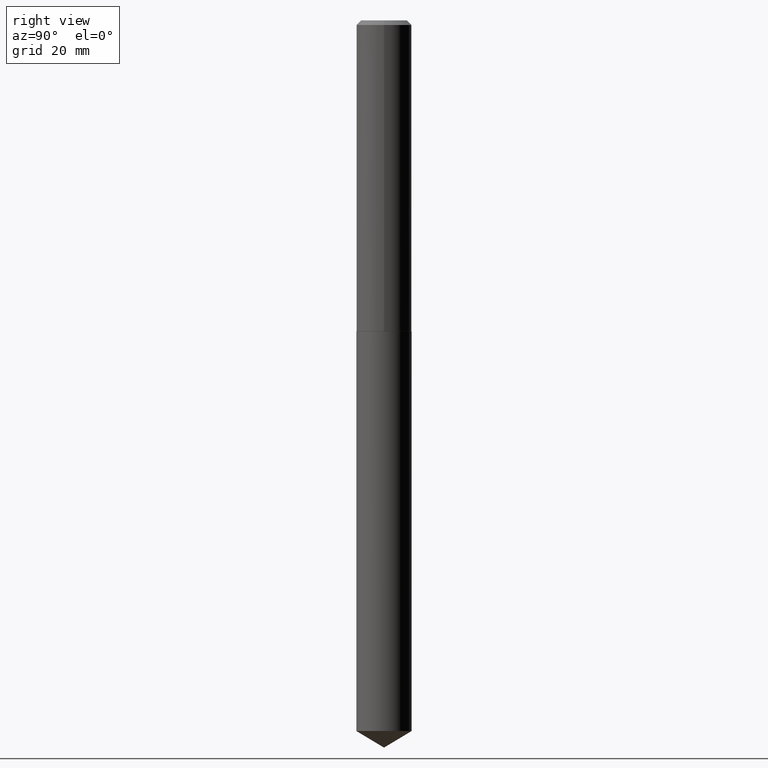
[diagram: clean part render]
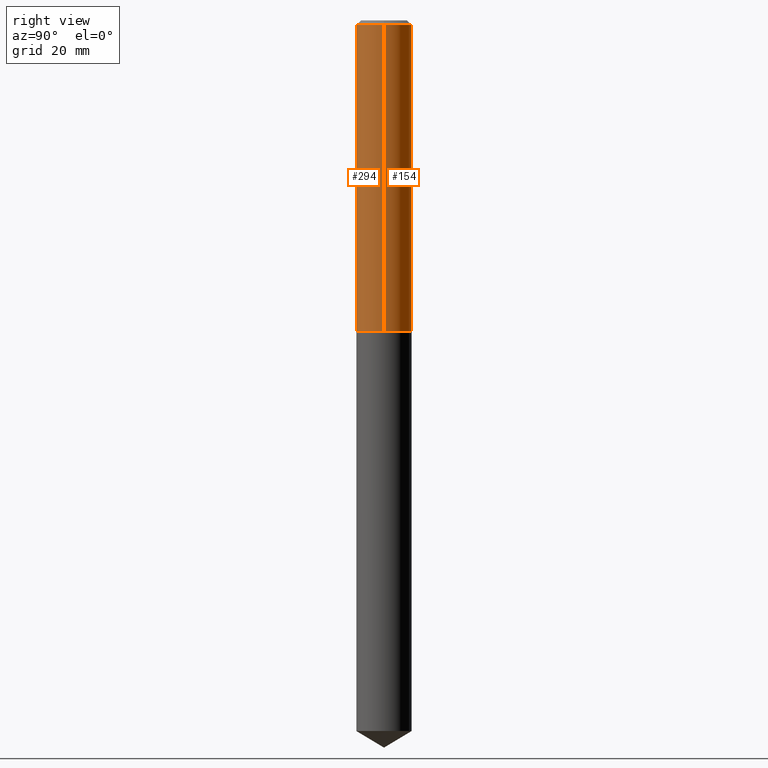
[diagram: same view with one multi-face feature highlighted, each face labeled with its STEP entity id]
A machine part, right view. The highlighted faces form ONE feature: a constant-radius fillet chain: 2 tangent blend faces with common blend radius 4.7498 mm. The faces share edges in the B-rep.
Their STEP definitions:
[1] entity #154 (Cylinder):
#2 = EDGE_CURVE ( 'NONE', #375, #233, #285, .T. ) ;
#3 = CARTESIAN_POINT ( 'NONE',  ( 5.147222743258475730E-29, -7.348869921997053302E-15, -2.104800000000000004 ) ) ;
#17 = AXIS2_PLACEMENT_3D ( 'NONE', #316, #358, #242 ) ;
#18 = EDGE_LOOP ( 'NONE', ( #322, #57, #209, #265 ) ) ;
#33 = CARTESIAN_POINT ( 'NONE',  ( -0.1870000000000002494, -6.020155006125664774E-15, -2.104800000000000004 ) ) ;
#40 = DIRECTION ( 'NONE',  ( 1.000000000000000000, -6.982962677686266711E-15, 0.000000000000000000 ) ) ;
#51 = AXIS2_PLACEMENT_3D ( 'NONE', #364, #184, #40 ) ;
#57 = ORIENTED_EDGE ( 'NONE', *, *, #254, .T. ) ;
#67 = LINE ( 'NONE', #388, #97 ) ;
#72 = DIRECTION ( 'NONE',  ( -2.445468806185136597E-29, 3.491481338843145583E-15, 1.000000000000000000 ) ) ;
#95 = LINE ( 'NONE', #128, #140 ) ;
#97 = VECTOR ( 'NONE', #362, 39.37007874015748143 ) ;
#99 = DIRECTION ( 'NONE',  ( -2.445468806185136877E-29, 3.491481338843145188E-15, 1.000000000000000000 ) ) ;
#128 = CARTESIAN_POINT ( 'NONE',  ( 0.1870000000000001383, -1.305814020727332790E-15, 9.118450570738406715E-30 ) ) ;
#139 = VERTEX_POINT ( 'NONE', #289 ) ;
#140 = VECTOR ( 'NONE', #99, 39.37007874015748143 ) ;
#154 = ADVANCED_FACE ( 'NONE', ( #172 ), #202, .T. ) ;
#172 = FACE_OUTER_BOUND ( 'NONE', #18, .T. ) ;
#184 = DIRECTION ( 'NONE',  ( -2.445468806185136597E-29, 3.491481338843145583E-15, 1.000000000000000000 ) ) ;
#202 = CYLINDRICAL_SURFACE ( 'NONE', #17, 0.1870000000000001383 ) ;
#209 = ORIENTED_EDGE ( 'NONE', *, *, #307, .F. ) ;
#233 = VERTEX_POINT ( 'NONE', #33 ) ;
#242 = DIRECTION ( 'NONE',  ( 1.000000000000000000, -6.982962677686266711E-15, 4.876176775795935793E-29 ) ) ;
#245 = CARTESIAN_POINT ( 'NONE',  ( 0.1870000000000000551, -1.414922812566181102E-15, -0.03125000000000022898 ) ) ;
#254 = EDGE_CURVE ( 'NONE', #233, #139, #67, .T. ) ;
#265 = ORIENTED_EDGE ( 'NONE', *, *, #385, .F. ) ;
#273 = AXIS2_PLACEMENT_3D ( 'NONE', #3, #72, #308 ) ;
#281 = VERTEX_POINT ( 'NONE', #245 ) ;
#285 = CIRCLE ( 'NONE', #273, 0.1870000000000002494 ) ;
#289 = CARTESIAN_POINT ( 'NONE',  ( -0.1870000000000000551, -2.400274441046563068E-15, -0.03125000000000022898 ) ) ;
#307 = EDGE_CURVE ( 'NONE', #281, #139, #350, .T. ) ;
#308 = DIRECTION ( 'NONE',  ( 1.000000000000000000, -6.982962677686266711E-15, 0.000000000000000000 ) ) ;
#316 = CARTESIAN_POINT ( 'NONE',  ( 0.000000000000000000, 0.000000000000000000, 0.000000000000000000 ) ) ;
#322 = ORIENTED_EDGE ( 'NONE', *, *, #2, .T. ) ;
#350 = CIRCLE ( 'NONE', #51, 0.1870000000000000551 ) ;
#358 = DIRECTION ( 'NONE',  ( -2.445468806185136597E-29, 3.491481338843145583E-15, 1.000000000000000000 ) ) ;
#362 = DIRECTION ( 'NONE',  ( -2.445468806185136877E-29, 3.491481338843145188E-15, 1.000000000000000000 ) ) ;
#364 = CARTESIAN_POINT ( 'NONE',  ( 7.642090019328607041E-31, -1.091087918388490883E-16, -0.03125000000000022898 ) ) ;
#375 = VERTEX_POINT ( 'NONE', #386 ) ;
#385 = EDGE_CURVE ( 'NONE', #375, #281, #95, .T. ) ;
#386 = CARTESIAN_POINT ( 'NONE',  ( 0.1870000000000002494, -8.654683942724386880E-15, -2.104800000000000004 ) ) ;
#388 = CARTESIAN_POINT ( 'NONE',  ( -0.1870000000000001383, 1.328714915871388330E-15, -9.198408618776680107E-30 ) ) ;
[2] entity #294 (Cylinder):
#33 = CARTESIAN_POINT ( 'NONE',  ( -0.1870000000000002494, -6.020155006125664774E-15, -2.104800000000000004 ) ) ;
#54 = DIRECTION ( 'NONE',  ( 1.000000000000000000, -6.982962677686266711E-15, 0.000000000000000000 ) ) ;
#56 = ORIENTED_EDGE ( 'NONE', *, *, #385, .T. ) ;
#64 = CARTESIAN_POINT ( 'NONE',  ( 0.000000000000000000, 0.000000000000000000, 0.000000000000000000 ) ) ;
#67 = LINE ( 'NONE', #388, #97 ) ;
#80 = EDGE_CURVE ( 'NONE', #233, #375, #229, .T. ) ;
#89 = CARTESIAN_POINT ( 'NONE',  ( 7.642090019328607041E-31, -1.091087918388490883E-16, -0.03125000000000022898 ) ) ;
#90 = AXIS2_PLACEMENT_3D ( 'NONE', #64, #244, #269 ) ;
#93 = CYLINDRICAL_SURFACE ( 'NONE', #90, 0.1870000000000001383 ) ;
#95 = LINE ( 'NONE', #128, #140 ) ;
#97 = VECTOR ( 'NONE', #362, 39.37007874015748143 ) ;
#98 = ORIENTED_EDGE ( 'NONE', *, *, #80, .T. ) ;
#99 = DIRECTION ( 'NONE',  ( -2.445468806185136877E-29, 3.491481338843145188E-15, 1.000000000000000000 ) ) ;
#123 = CARTESIAN_POINT ( 'NONE',  ( 5.147222743258475730E-29, -7.348869921997053302E-15, -2.104800000000000004 ) ) ;
#128 = CARTESIAN_POINT ( 'NONE',  ( 0.1870000000000001383, -1.305814020727332790E-15, 9.118450570738406715E-30 ) ) ;
#139 = VERTEX_POINT ( 'NONE', #289 ) ;
#140 = VECTOR ( 'NONE', #99, 39.37007874015748143 ) ;
#156 = AXIS2_PLACEMENT_3D ( 'NONE', #89, #377, #324 ) ;
#177 = EDGE_CURVE ( 'NONE', #139, #281, #267, .T. ) ;
#227 = ORIENTED_EDGE ( 'NONE', *, *, #177, .F. ) ;
#229 = CIRCLE ( 'NONE', #325, 0.1870000000000002494 ) ;
#233 = VERTEX_POINT ( 'NONE', #33 ) ;
#244 = DIRECTION ( 'NONE',  ( -2.445468806185136597E-29, 3.491481338843145583E-15, 1.000000000000000000 ) ) ;
#245 = CARTESIAN_POINT ( 'NONE',  ( 0.1870000000000000551, -1.414922812566181102E-15, -0.03125000000000022898 ) ) ;
#254 = EDGE_CURVE ( 'NONE', #233, #139, #67, .T. ) ;
#267 = CIRCLE ( 'NONE', #156, 0.1870000000000000551 ) ;
#269 = DIRECTION ( 'NONE',  ( 1.000000000000000000, -6.982962677686266711E-15, 4.876176775795935793E-29 ) ) ;
#281 = VERTEX_POINT ( 'NONE', #245 ) ;
#283 = EDGE_LOOP ( 'NONE', ( #287, #98, #56, #227 ) ) ;
#287 = ORIENTED_EDGE ( 'NONE', *, *, #254, .F. ) ;
#289 = CARTESIAN_POINT ( 'NONE',  ( -0.1870000000000000551, -2.400274441046563068E-15, -0.03125000000000022898 ) ) ;
#294 = ADVANCED_FACE ( 'NONE', ( #365 ), #93, .T. ) ;
#324 = DIRECTION ( 'NONE',  ( 1.000000000000000000, -6.982962677686266711E-15, 0.000000000000000000 ) ) ;
#325 = AXIS2_PLACEMENT_3D ( 'NONE', #123, #354, #54 ) ;
#354 = DIRECTION ( 'NONE',  ( -2.445468806185136597E-29, 3.491481338843145583E-15, 1.000000000000000000 ) ) ;
#362 = DIRECTION ( 'NONE',  ( -2.445468806185136877E-29, 3.491481338843145188E-15, 1.000000000000000000 ) ) ;
#365 = FACE_OUTER_BOUND ( 'NONE', #283, .T. ) ;
#375 = VERTEX_POINT ( 'NONE', #386 ) ;
#377 = DIRECTION ( 'NONE',  ( -2.445468806185136597E-29, 3.491481338843145583E-15, 1.000000000000000000 ) ) ;
#385 = EDGE_CURVE ( 'NONE', #375, #281, #95, .T. ) ;
#386 = CARTESIAN_POINT ( 'NONE',  ( 0.1870000000000002494, -8.654683942724386880E-15, -2.104800000000000004 ) ) ;
#388 = CARTESIAN_POINT ( 'NONE',  ( -0.1870000000000001383, 1.328714915871388330E-15, -9.198408618776680107E-30 ) ) ;